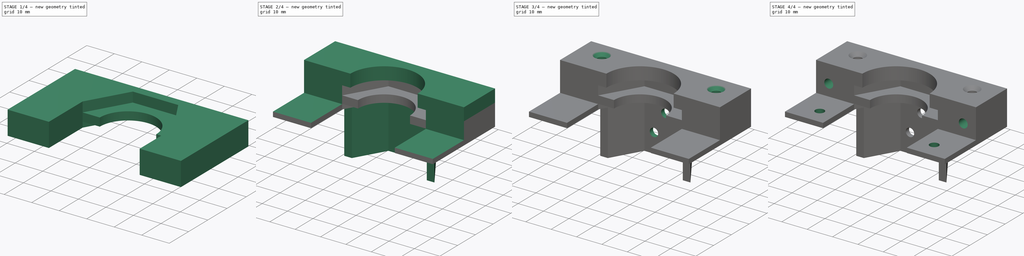
[diagram: build sequence overview — one tinted view per stage of 4, left to right]
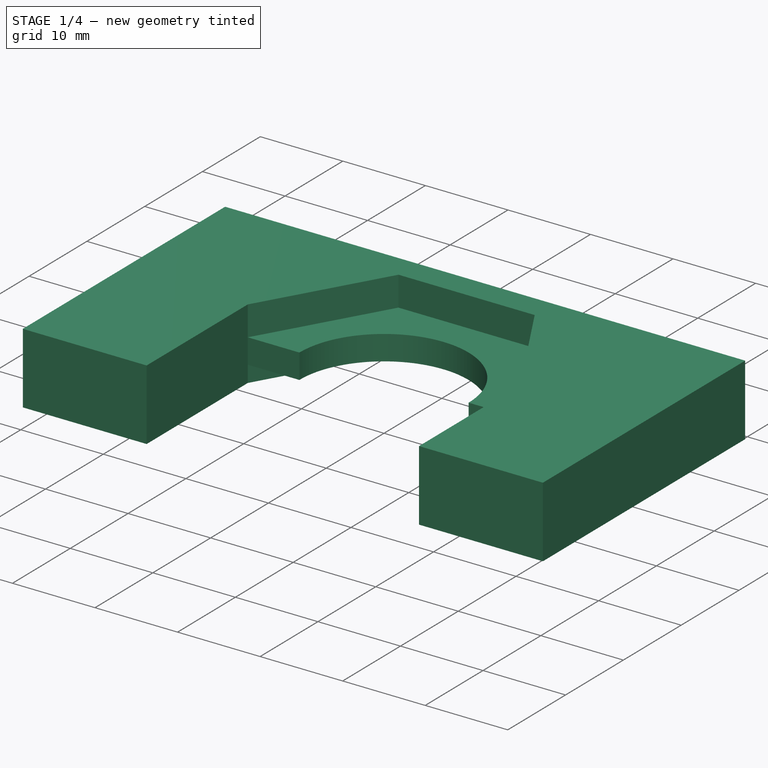
[diagram: stage 1 of 4 — iso view after this stage's code; geometry added in this stage tinted green]
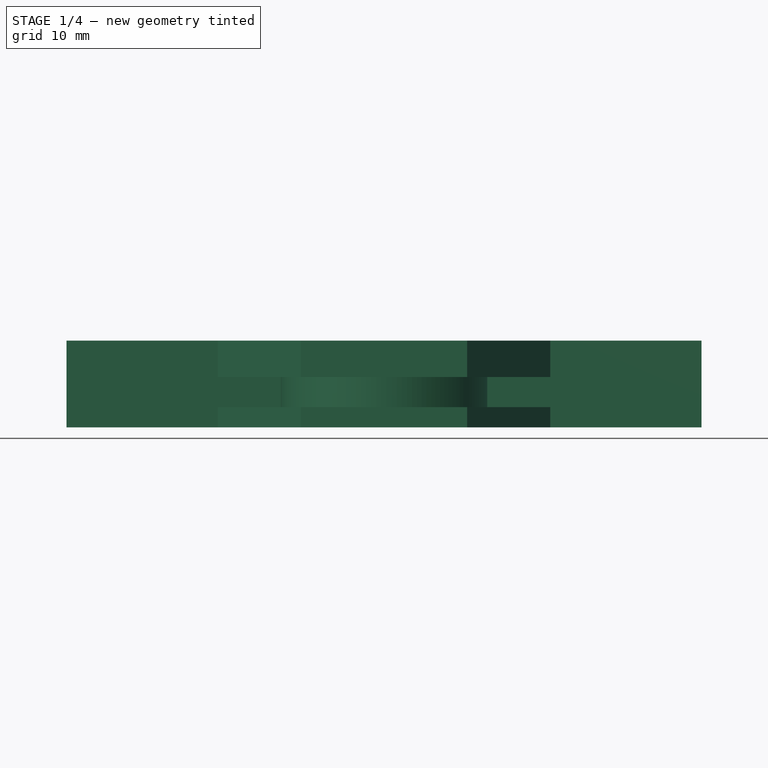
[diagram: stage 1 of 4 — front view after this stage's code; geometry added in this stage tinted green]
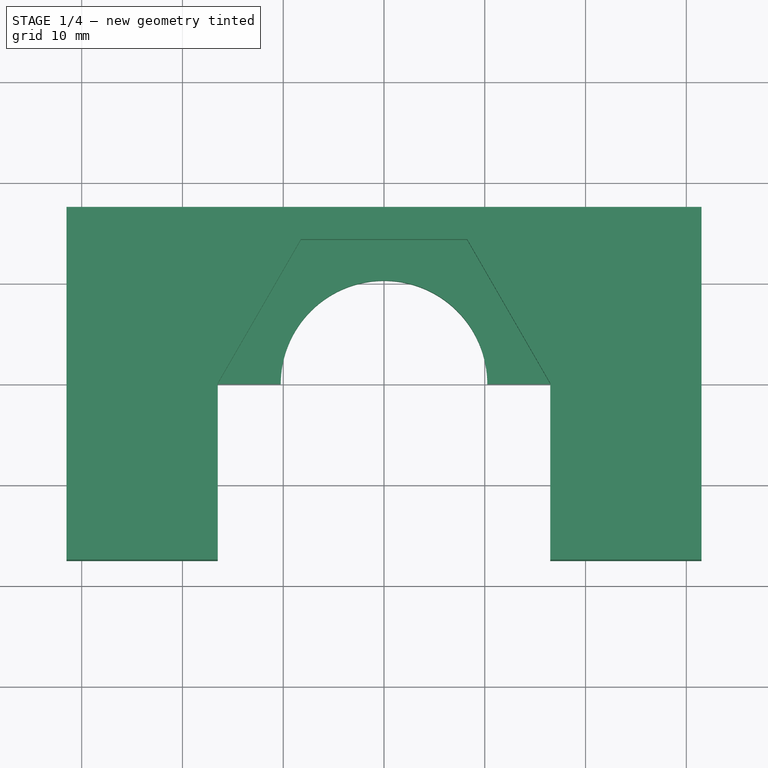
[diagram: stage 1 of 4 — top view after this stage's code; geometry added in this stage tinted green]
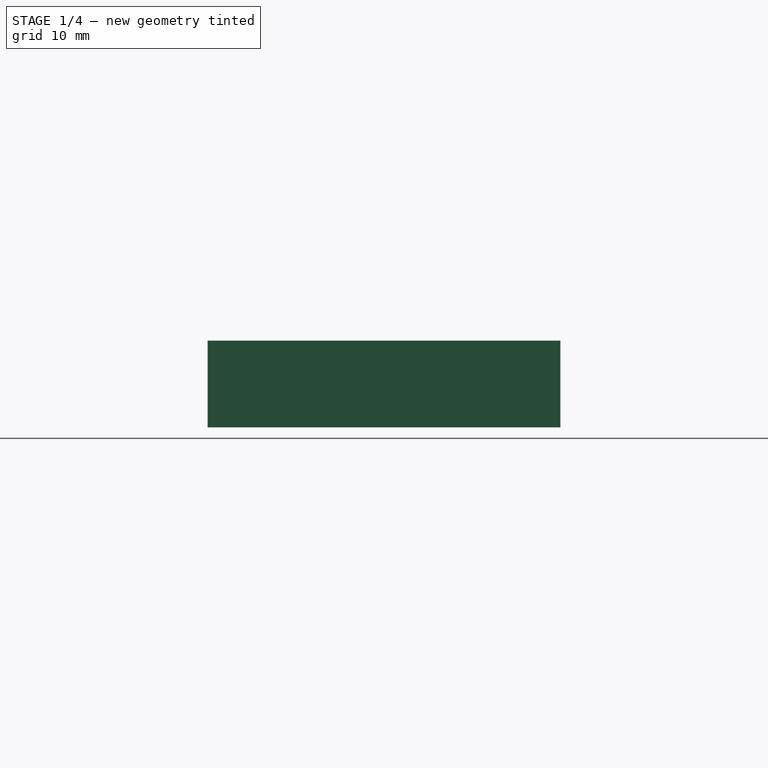
[diagram: stage 1 of 4 — right view after this stage's code; geometry added in this stage tinted green]
FCSTD DOCUMENT  (FreeCAD 0.17R12955 (Git))
Label: THC-01-Holder
License: All rights reserved
LicenseURL: http://en.wikipedia.org/wiki/All_rights_reserved
objects: Sketcher::SketchObject×12, PartDesign::Pad×5, PartDesign::Pocket×5, PartDesign::Hole×2, PartDesign::Body×1
note: 37 computed .brp shape members not serialized (recipe doc carries the construction recipe); baked Part::Feature solids carry a one-line shape summary decoded from their .brp

FEATURE [Sketcher::SketchObject] Sketch
  MapMode = 5
  Support = -> [XY_Plane]
  sketch-geometry (11):
    g0: LineSegment StartX=-31.5 StartY=17.5 StartZ=0 EndX=31.5 EndY=17.5 EndZ=0
    g1: LineSegment StartX=31.5 StartY=17.5 StartZ=0 EndX=31.5 EndY=-17.5 EndZ=0
    g2: LineSegment StartX=31.5 StartY=-17.5 StartZ=0 EndX=16.5 EndY=-17.5 EndZ=0
    g3: LineSegment StartX=-31.5 StartY=-17.5 StartZ=0 EndX=-31.5 EndY=17.5 EndZ=0
    g4: LineSegment StartX=16.5 StartY=-3.01524e-05 StartZ=0 EndX=8.25 EndY=14.2894 EndZ=0
    g5: LineSegment StartX=8.25 StartY=14.2894 StartZ=0 EndX=-8.25 EndY=14.2894 EndZ=0
    g6: LineSegment StartX=-8.25 StartY=14.2894 StartZ=0 EndX=-16.5 EndY=0 EndZ=0
    g7: Circle [constr] CenterX=0 CenterY=0 CenterZ=0 NormalX=0 NormalY=0 NormalZ=1 AngleXU=0 Radius=16.5
    g8: LineSegment StartX=-16.5 StartY=0 StartZ=0 EndX=-16.5 EndY=-17.5 EndZ=0
    g9: LineSegment StartX=16.5 StartY=-3.01524e-05 StartZ=0 EndX=16.5 EndY=-17.5 EndZ=0
    g10: LineSegment StartX=-16.5 StartY=-17.5 StartZ=0 EndX=-31.5 EndY=-17.5 EndZ=0
  constraints (31):
    c: Coincident(g0,g1)
    c: Coincident(g1,g2)
    c: Coincident(g10,g3)
    c: Coincident(g3,g0)
    c: Horizontal(g0)
    c: Horizontal(g2)
    c: Vertical(g1)
    c: Vertical(g3)
    c: DistanceX(g0,g0) = 63
    c: DistanceY(g1,g0) = 35
    c: Symmetric(g1,g10,g-2)
    c: Symmetric(g0,g10,g-1)
    c: Coincident(g4,g5)
    c: Coincident(g5,g6)
    c: PointOnObject(g4,g7)
    c: PointOnObject(g4,g7)
    c: PointOnObject(g5,g7)
    c: PointOnObject(g6,g7)
    c: Radius(g7) = 16.5
    c: Coincident(g7,g-1)
    c: Parallel(g5,g-1)
    c: Coincident(g8,g6)
    c: Vertical(g8)
    c: Vertical(g9)
    c: Tangent(g9,g7)
    c: Coincident(g2,g9)
    c: Coincident(g10,g8)
    c: Tangent(g2,g10)
    c: DistanceX(g5,g4) = 16.5
    c: PointOnObject(g6,g-1)
    c: Coincident(g4,g9)
FEATURE [PartDesign::Pad] Pad
  Length = 2
  Length2 = 100
  Profile = -> Sketch
  Type = 0
FEATURE [Sketcher::SketchObject] Sketch001
  ExternalGeometry = -> [Pad]
  MapMode = 5
  Placement = pos=(0,0,2) rot=(0,0,1;0rad)
  Support = -> [Pad]
  sketch-geometry (10):
    g0: ArcOfCircle CenterX=0 CenterY=0 CenterZ=0 NormalX=0 NormalY=0 NormalZ=1 AngleXU=0 Radius=10.25 StartAngle=6.28318 EndAngle=9.42478
    g1: LineSegment StartX=-31.5 StartY=17.5 StartZ=0 EndX=31.5 EndY=17.5 EndZ=0
    g2: LineSegment StartX=31.5 StartY=17.5 StartZ=0 EndX=31.5 EndY=-17.5 EndZ=0
    g3: LineSegment StartX=31.5 StartY=-17.5 StartZ=0 EndX=16.5 EndY=-17.5 EndZ=0
    g4: LineSegment StartX=-31.5 StartY=-17.5 StartZ=0 EndX=-31.5 EndY=17.5 EndZ=0
    g5: LineSegment StartX=-16.5 StartY=0 StartZ=0 EndX=-10.25 EndY=0 EndZ=0
    g6: LineSegment StartX=10.25 StartY=-3.01524e-05 StartZ=0 EndX=16.5 EndY=-3.01524e-05 EndZ=0
    g7: LineSegment StartX=-16.5 StartY=-17.5 StartZ=0 EndX=-16.5 EndY=0 EndZ=0
    g8: LineSegment StartX=16.5 StartY=-17.5 StartZ=0 EndX=16.5 EndY=-3.01524e-05 EndZ=0
    g9: LineSegment StartX=-16.5 StartY=-17.5 StartZ=0 EndX=-31.5 EndY=-17.5 EndZ=0
  constraints (26):
    c: Radius(g0) = 10.25
    c: Coincident(g0,g-1)
    c: Coincident(g1,g2)
    c: Coincident(g2,g3)
    c: Coincident(g9,g4)
    c: Coincident(g4,g1)
    c: Horizontal(g1)
    c: Horizontal(g3)
    c: Vertical(g2)
    c: Vertical(g4)
    c: Coincident(g2,g-4)
    c: Coincident(g1,g-3)
    c: Coincident(g5,g-6)
    c: Horizontal(g5)
    c: Coincident(g6,g-5)
    c: Horizontal(g6)
    c: Coincident(g7,g5)
    c: Vertical(g7)
    c: Coincident(g8,g6)
    c: Vertical(g8)
    c: PointOnObject(g3,g8)
    c: PointOnObject(g9,g7)
    c: Tangent(g3,g9)
    c: Coincident(g0,g6)
    c: Coincident(g0,g5)
    c: Coincident(g7,g9)
FEATURE [PartDesign::Pad] Pad001
  BaseFeature = -> Pad
  Length = 3
  Length2 = 100
  Profile = -> Sketch001
  Type = 0
FEATURE [Sketcher::SketchObject] Sketch002
  ExternalGeometry = -> [Pad001]
  MapMode = 5
  Placement = pos=(0,0,5) rot=(0,0,1;0rad)
  Support = -> [Pad001]
  sketch-geometry (11):
    g0: LineSegment StartX=16.5 StartY=0 StartZ=0 EndX=8.25 EndY=14.2894 EndZ=0
    g1: LineSegment StartX=8.25 StartY=14.2894 StartZ=0 EndX=-8.25 EndY=14.2894 EndZ=0
    g2: LineSegment StartX=-8.25 StartY=14.2894 StartZ=0 EndX=-16.5 EndY=0 EndZ=0
    g3: Circle [constr] CenterX=0 CenterY=0 CenterZ=0 NormalX=0 NormalY=0 NormalZ=1 AngleXU=0 Radius=16.5
    g4: LineSegment StartX=-31.5 StartY=17.5 StartZ=0 EndX=31.5 EndY=17.5 EndZ=0
    g5: LineSegment StartX=31.5 StartY=17.5 StartZ=0 EndX=31.5 EndY=-17.5 EndZ=0
    g6: LineSegment StartX=31.5 StartY=-17.5 StartZ=0 EndX=16.5 EndY=-17.5 EndZ=0
    g7: LineSegment StartX=-31.5 StartY=-17.5 StartZ=0 EndX=-31.5 EndY=17.5 EndZ=0
    g8: LineSegment StartX=-16.5 StartY=0 StartZ=0 EndX=-16.5 EndY=-17.5 EndZ=0
    g9: LineSegment StartX=16.5 StartY=0 StartZ=0 EndX=16.5 EndY=-17.5 EndZ=0
    g10: LineSegment StartX=-16.5 StartY=-17.5 StartZ=0 EndX=-31.5 EndY=-17.5 EndZ=0
  constraints (29):
    c: Coincident(g0,g1)
    c: Coincident(g1,g2)
    c: PointOnObject(g0,g3)
    c: PointOnObject(g0,g3)
    c: PointOnObject(g1,g3)
    c: PointOnObject(g2,g3)
    c: Coincident(g3,g-1)
    c: Parallel(g1,g-1)
    c: Coincident(g4,g5)
    c: Coincident(g5,g6)
    c: Coincident(g10,g7)
    c: Coincident(g7,g4)
    c: Horizontal(g4)
    c: Horizontal(g6)
    c: Vertical(g5)
    c: Vertical(g7)
    c: Coincident(g4,g-3)
    c: Coincident(g5,g-6)
    c: PointOnObject(g8,g-1)
    c: Coincident(g8,g-4)
    c: PointOnObject(g9,g-1)
    c: Coincident(g9,g-5)
    c: Coincident(g8,g2)
    c: PointOnObject(g6,g9)
    c: PointOnObject(g10,g8)
    c: Tangent(g6,g10)
    c: Coincident(g9,g0)
    c: Radius(g3) = 16.5
    c: DistanceX(g1,g0) = 16.5
FEATURE [PartDesign::Pad] Pad002
  BaseFeature = -> Pad001
  Length = 3.6
  Length2 = 100
  Profile = -> Sketch002
  Type = 0
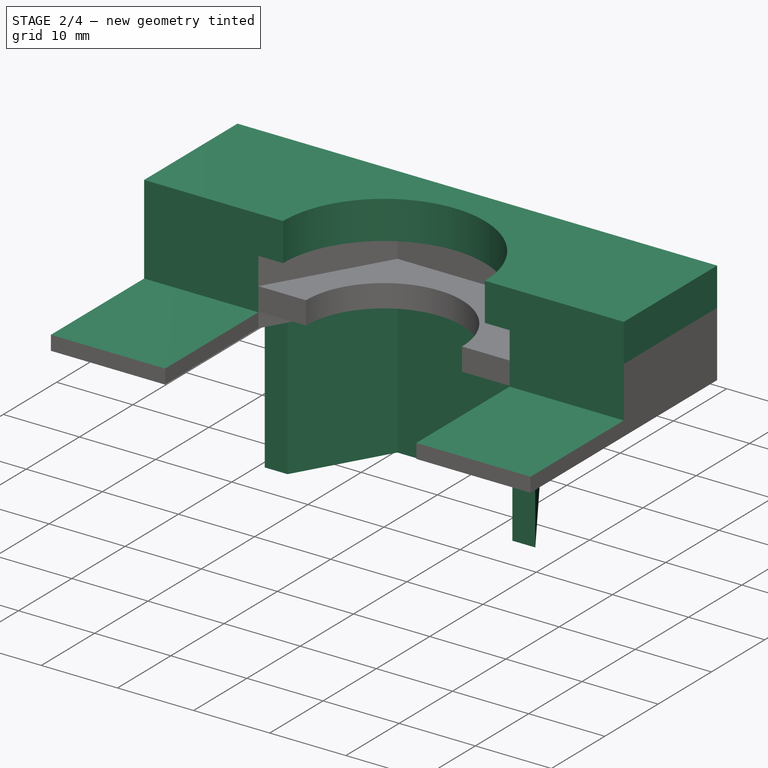
[diagram: stage 2 of 4 — iso view after this stage's code; geometry added in this stage tinted green]
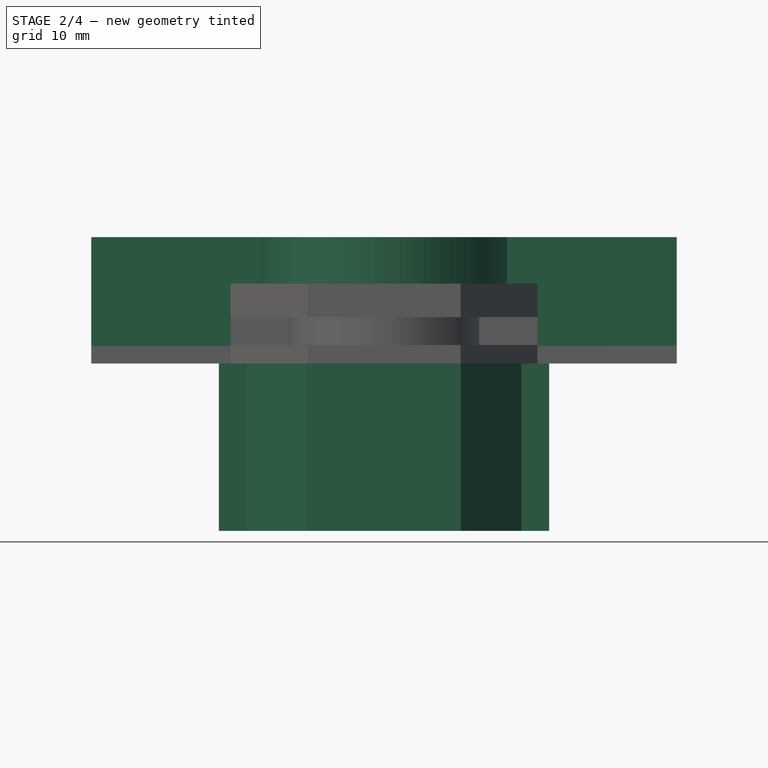
[diagram: stage 2 of 4 — front view after this stage's code; geometry added in this stage tinted green]
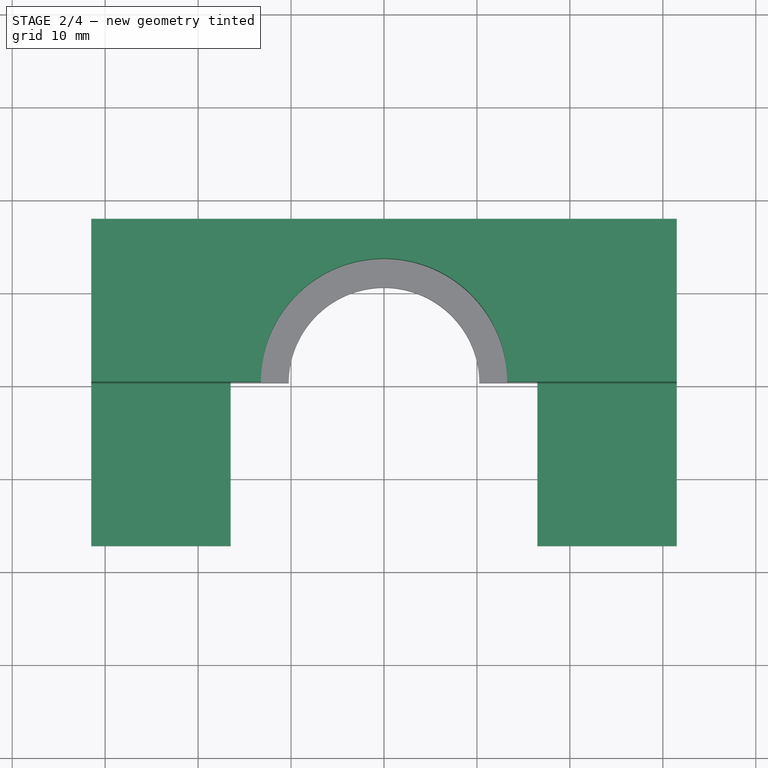
[diagram: stage 2 of 4 — top view after this stage's code; geometry added in this stage tinted green]
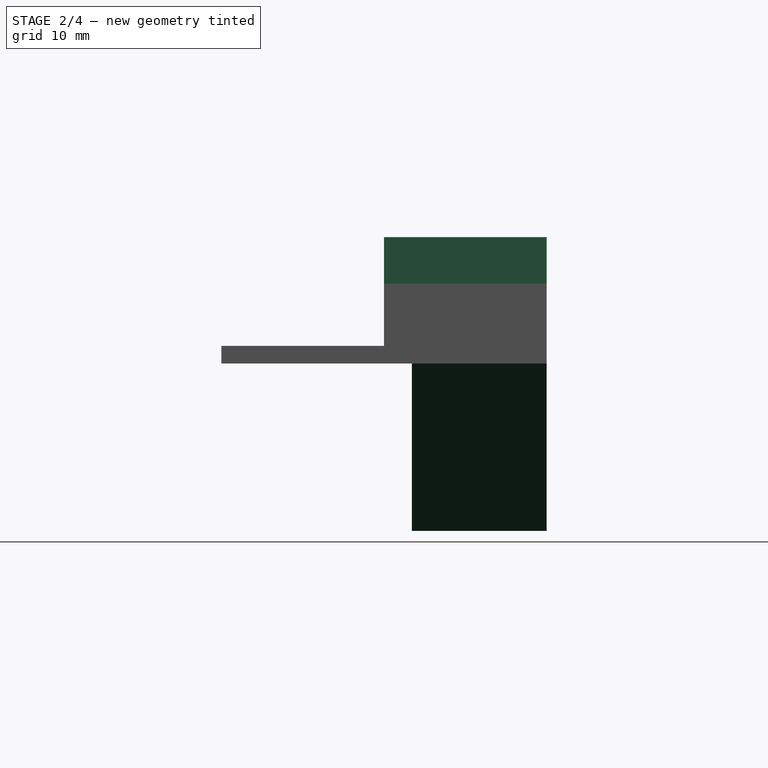
[diagram: stage 2 of 4 — right view after this stage's code; geometry added in this stage tinted green]
FEATURE [Sketcher::SketchObject] Sketch003
  ExternalGeometry = -> [Pad002]
  MapMode = 5
  Placement = pos=(0,0,8.6) rot=(0,0,1;0rad)
  Support = -> [Pad002]
  sketch-geometry (10):
    g0: LineSegment StartX=-31.5 StartY=17.5 StartZ=0 EndX=31.5 EndY=17.5 EndZ=0
    g1: LineSegment StartX=31.5 StartY=17.5 StartZ=0 EndX=31.5 EndY=-17.5 EndZ=0
    g2: LineSegment StartX=31.5 StartY=-17.5 StartZ=0 EndX=16.5 EndY=-17.5 EndZ=0
    g3: LineSegment StartX=-31.5 StartY=-17.5 StartZ=0 EndX=-31.5 EndY=17.5 EndZ=0
    g4: ArcOfCircle CenterX=0 CenterY=0 CenterZ=0 NormalX=0 NormalY=0 NormalZ=1 AngleXU=0 Radius=13.25 StartAngle=0 EndAngle=3.14159
    g5: LineSegment StartX=-16.5 StartY=-17.5 StartZ=0 EndX=-16.5 EndY=-3e-12 EndZ=0
    g6: LineSegment StartX=-16.5 StartY=-3e-12 StartZ=0 EndX=-13.25 EndY=-3e-12 EndZ=0
    g7: LineSegment StartX=16.5 StartY=-17.5 StartZ=0 EndX=16.5 EndY=0 EndZ=0
    g8: LineSegment StartX=16.5 StartY=0 StartZ=0 EndX=13.25 EndY=0 EndZ=0
    g9: LineSegment StartX=-16.5 StartY=-17.5 StartZ=0 EndX=-31.5 EndY=-17.5 EndZ=0
  constraints (25):
    c: Coincident(g0,g1)
    c: Coincident(g1,g2)
    c: Coincident(g9,g3)
    c: Coincident(g3,g0)
    c: Horizontal(g0)
    c: Horizontal(g2)
    c: Vertical(g1)
    c: Vertical(g3)
    c: Coincident(g0,g-6)
    c: Coincident(g1,g-8)
    c: Coincident(g4,g-1)
    c: Radius(g4) = 13.25
    c: Coincident(g-7,g5)
    c: Coincident(g5,g-7)
    c: Coincident(g5,g6)
    c: Horizontal(g6)
    c: Coincident(g-4,g7)
    c: Coincident(g7,g-4)
    c: Coincident(g7,g8)
    c: Horizontal(g8)
    c: PointOnObject(g2,g7)
    c: PointOnObject(g9,g5)
    c: Tangent(g2,g9)
    c: Coincident(g4,g8)
    c: Coincident(g4,g6)
FEATURE [PartDesign::Pad] Pad003
  BaseFeature = -> Pad002
  Length = 5
  Length2 = 100
  Profile = -> Sketch003
  Type = 0
FEATURE [Sketcher::SketchObject] Sketch004
  ExternalGeometry = -> [Pad003]
  MapMode = 5
  Placement = pos=(0,0,13.6) rot=(0,0,1;0rad)
  Support = -> [Pad003]
  sketch-geometry (4):
    g0: LineSegment StartX=-31.5 StartY=0 StartZ=0 EndX=31.5 EndY=0 EndZ=0
    g1: LineSegment StartX=31.5 StartY=0 StartZ=0 EndX=31.5 EndY=-17.5 EndZ=0
    g2: LineSegment StartX=31.5 StartY=-17.5 StartZ=0 EndX=-31.5 EndY=-17.5 EndZ=0
    g3: LineSegment StartX=-31.5 StartY=-17.5 StartZ=0 EndX=-31.5 EndY=0 EndZ=0
  constraints (9):
    c: Coincident(g0,g1)
    c: Coincident(g1,g2)
    c: Coincident(g2,g3)
    c: Coincident(g3,g0)
    c: Horizontal(g0)
    c: Horizontal(g2)
    c: Vertical(g1)
    c: Vertical(g3)
    c: PointOnObject(g0,g-1)
FEATURE [PartDesign::Pocket] Pocket
  BaseFeature = -> Pad003
  Length = 11.7
  Profile = -> Sketch004
  Type = 0
FEATURE [Sketcher::SketchObject] Sketch008
  ExternalGeometry = -> [Pocket]
  MapMode = 5
  Placement = pos=(0,0,0) rot=(1,0,0;3.14159rad)
  Support = -> [Pocket]
  sketch-geometry (8):
    g0: LineSegment StartX=-8.25 StartY=-14.2894 StartZ=0 EndX=8.25 EndY=-14.2894 EndZ=0
    g1: LineSegment StartX=8.25 StartY=-17.5 StartZ=0 EndX=-8.25 EndY=-17.5 EndZ=0
    g2: LineSegment StartX=-14.7679 StartY=-3 StartZ=0 EndX=-17.7679 EndY=-3 EndZ=0
    g3: LineSegment StartX=-17.7679 StartY=-3 StartZ=0 EndX=-8.25 EndY=-17.5 EndZ=0
    g4: LineSegment StartX=14.768 StartY=-2.99997 StartZ=0 EndX=17.768 EndY=-3 EndZ=0
    g5: LineSegment StartX=17.768 StartY=-3 StartZ=0 EndX=8.25 EndY=-17.5 EndZ=0
    g6: LineSegment StartX=-14.7679 StartY=-3 StartZ=0 EndX=-8.25 EndY=-14.2894 EndZ=0
    g7: LineSegment StartX=8.25 StartY=-14.2894 StartZ=0 EndX=14.768 EndY=-2.99997 EndZ=0
  constraints (22):
    c: Coincident(g2,g3)
    c: Coincident(g1,g3)
    c: Coincident(g0,g6)
    c: Coincident(g0,g7)
    c: Coincident(g1,g5)
    c: Coincident(g4,g5)
    c: PointOnObject(g1,g-3)
    c: DistanceX(g1,g1) = 16.5
    c: DistanceX(g2,g2) = 3
    c: DistanceX(g4,g4) = 3
    c: DistanceY(g-3,g2) = 14.5
    c: DistanceY(g-3,g4) = 14.5
    c: Coincident(g0,g-6)
    c: Coincident(g-7,g0)
    c: PointOnObject(g1,g-3)
    c: Symmetric(g1,g1,g-2)
    c: Coincident(g6,g2)
    c: DistanceY(g2,g-6) = 3
    c: Coincident(g7,g4)
    c: DistanceY(g4,g-7) = 3
    c: PointOnObject(g4,g-7)
    c: PointOnObject(g2,g-6)
FEATURE [PartDesign::Pad] Pad004
  BaseFeature = -> Pocket
  Length = 18
  Length2 = 100
  Profile = -> Sketch008
  Type = 0
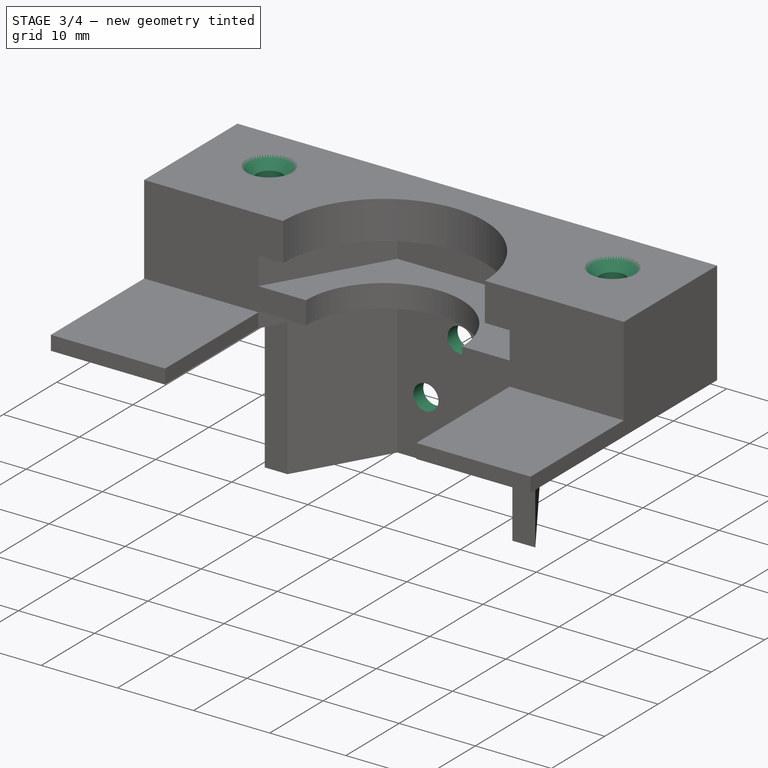
[diagram: stage 3 of 4 — iso view after this stage's code; geometry added in this stage tinted green]
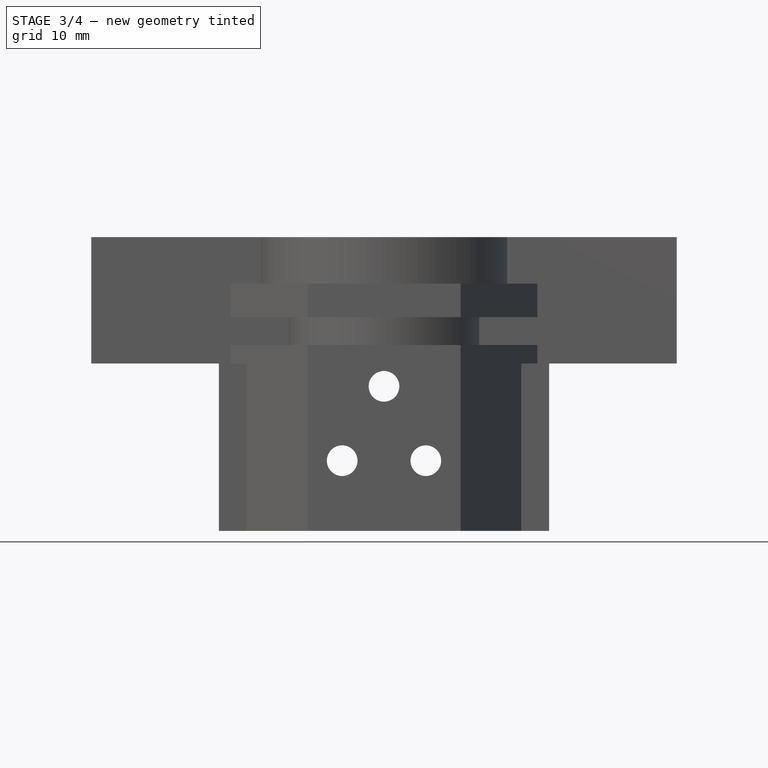
[diagram: stage 3 of 4 — front view after this stage's code; geometry added in this stage tinted green]
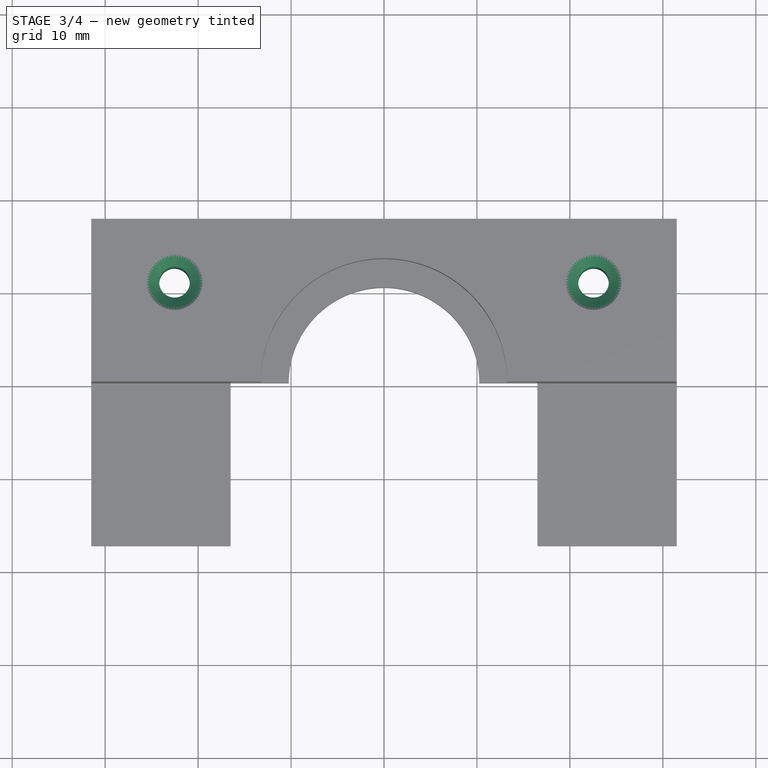
[diagram: stage 3 of 4 — top view after this stage's code; geometry added in this stage tinted green]
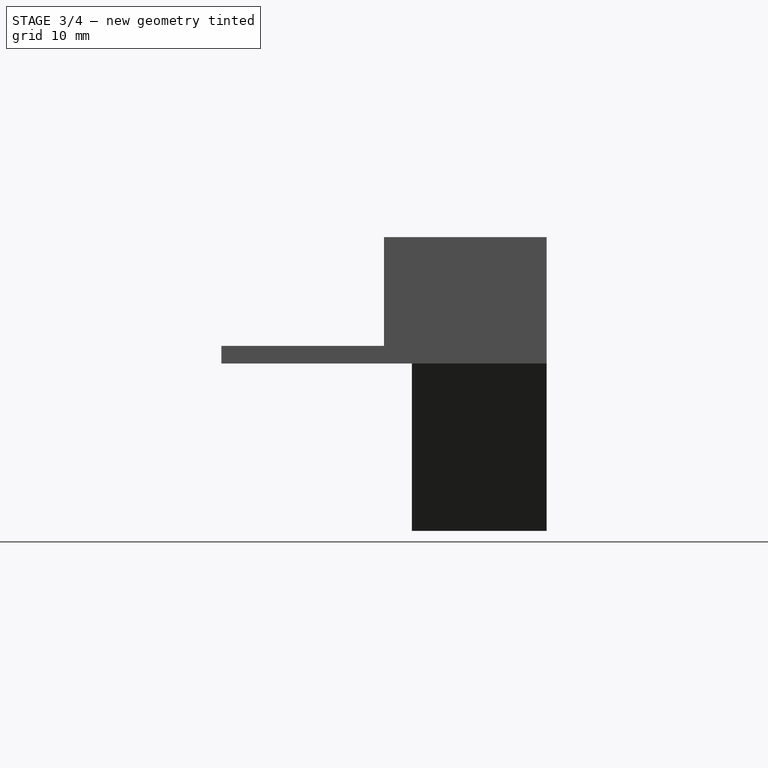
[diagram: stage 3 of 4 — right view after this stage's code; geometry added in this stage tinted green]
FEATURE [Sketcher::SketchObject] Sketch009
  MapMode = 5
  Placement = pos=(0,17.5,0) rot=(0,0.707107,0.707107;3.14159rad)
  Support = -> [Pad004]
  sketch-geometry (3):
    g0: Circle CenterX=0 CenterY=-2.45 CenterZ=0 NormalX=0 NormalY=0 NormalZ=1 AngleXU=0 Radius=2.1
    g1: Circle CenterX=-4.5 CenterY=-10.45 CenterZ=0 NormalX=0 NormalY=0 NormalZ=1 AngleXU=0 Radius=2.1
    g2: Circle CenterX=4.5 CenterY=-10.45 CenterZ=0 NormalX=0 NormalY=0 NormalZ=1 AngleXU=0 Radius=2.1
  constraints (8):
    c: Radius(g0) = 2.1
    c: PointOnObject(g0,g-2)
    c: Radius(g1) = 2.1
    c: Equal(g1,g2)
    c: DistanceX(g1,g2) = 9
    c: DistanceX(g-1,g2) = 4.5
    c: DistanceY(g2,g0) = 8
    c: DistanceY(g1,g0) = 8
FEATURE [PartDesign::Hole] Hole
  BaseFeature = -> Pad004
  Depth = 25
  DepthType = 0
  Diameter = 3.3
  DrillPoint = 1
  DrillPointAngle = 118
  HoleCutCountersinkAngle = 90
  HoleCutDepth = 0
  HoleCutDiameter = 6
  HoleCutType = 2
  ModelActualThread = false
  Profile = -> Sketch009
  Tapered = false
  TaperedAngle = 90
  ThreadAngle = 0
  ThreadClass = 0
  ThreadCutOffInner = 0
  ThreadCutOffOuter = 0
  ThreadDirection = 0
  ThreadFit = 0
  ThreadPitch = 0
  ThreadSize = 3
  ThreadType = 1
  Threaded = false
FEATURE [Sketcher::SketchObject] Sketch010
  ExternalGeometry = -> [Hole]
  MapMode = 5
  Placement = pos=(0,0,1.9) rot=(0,0,1;0rad)
  sketch-geometry (2):
    g0: Circle CenterX=-22.54 CenterY=24.3 CenterZ=0 NormalX=0 NormalY=0 NormalZ=1 AngleXU=0 Radius=1.75
    g1: Circle CenterX=7.79 CenterY=24.3 CenterZ=0 NormalX=0 NormalY=0 NormalZ=1 AngleXU=0 Radius=1.75
  constraints (6):
    c: DistanceY(g-3,g0) = 6.8
    c: DistanceX(g-5,g0) = 8.96
    c: Radius(g0) = 1.75
    c: Equal(g0,g1)
    c: DistanceX(g1,g-7) = 8.96
    c: DistanceY(g-7,g1) = 6.8
FEATURE [PartDesign::Pocket] Pocket001
  BaseFeature = -> Hole
  Length = 5
  Profile = -> Sketch010
  Type = 0
FEATURE [Sketcher::SketchObject] Sketch011
  ExternalGeometry = -> [Pocket001]
  MapMode = 5
  Placement = pos=(0,0,13.6) rot=(0,0,1;0rad)
  Support = -> [Pocket001]
  sketch-geometry (2):
    g0: Circle CenterX=-22.54 CenterY=10.7 CenterZ=0 NormalX=0 NormalY=0 NormalZ=1 AngleXU=0 Radius=1.75
    g1: Circle CenterX=22.54 CenterY=10.7 CenterZ=0 NormalX=0 NormalY=0 NormalZ=1 AngleXU=0 Radius=1.75
  constraints (6):
    c: Radius(g1) = 1.75
    c: Equal(g1,g0)
    c: DistanceX(g-3,g0) = 8.96
    c: DistanceY(g1,g-4) = 6.8
    c: DistanceX(g1,g-4) = 8.96
    c: DistanceY(g0,g-3) = 6.8
FEATURE [PartDesign::Hole] Hole001
  BaseFeature = -> Pocket001
  Depth = 25
  DepthType = 0
  Diameter = 3.3
  DrillPoint = 1
  DrillPointAngle = 118
  HoleCutCountersinkAngle = 90
  HoleCutDepth = 0
  HoleCutDiameter = 6
  HoleCutType = 2
  ModelActualThread = false
  Profile = -> Sketch011
  Tapered = false
  TaperedAngle = 90
  ThreadAngle = 0
  ThreadClass = 0
  ThreadCutOffInner = 0
  ThreadCutOffOuter = 0
  ThreadDirection = 0
  ThreadFit = 0
  ThreadPitch = 0
  ThreadSize = 3
  ThreadType = 1
  Threaded = false
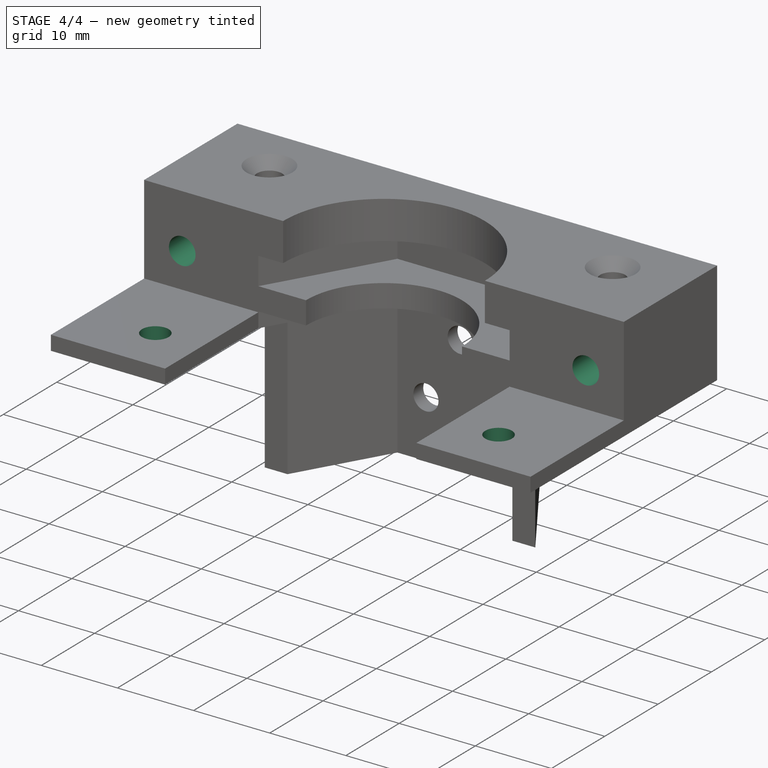
[diagram: stage 4 of 4 — iso view after this stage's code; geometry added in this stage tinted green]
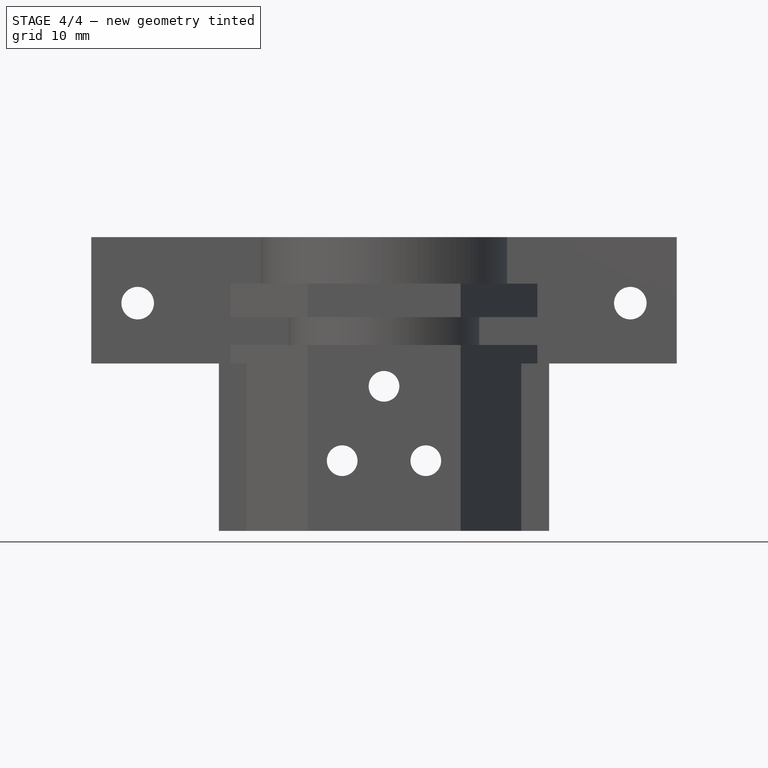
[diagram: stage 4 of 4 — front view after this stage's code; geometry added in this stage tinted green]
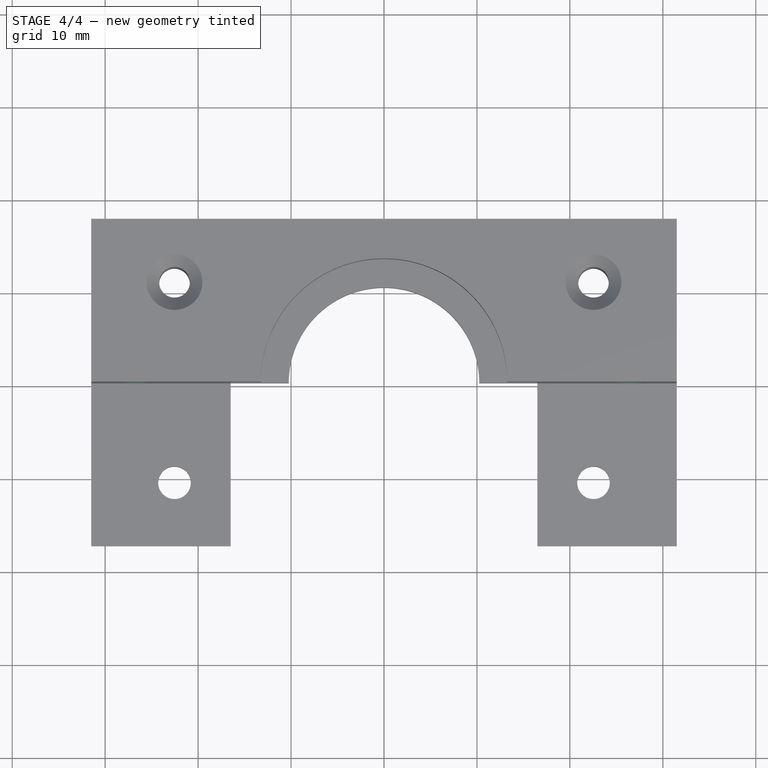
[diagram: stage 4 of 4 — top view after this stage's code; geometry added in this stage tinted green]
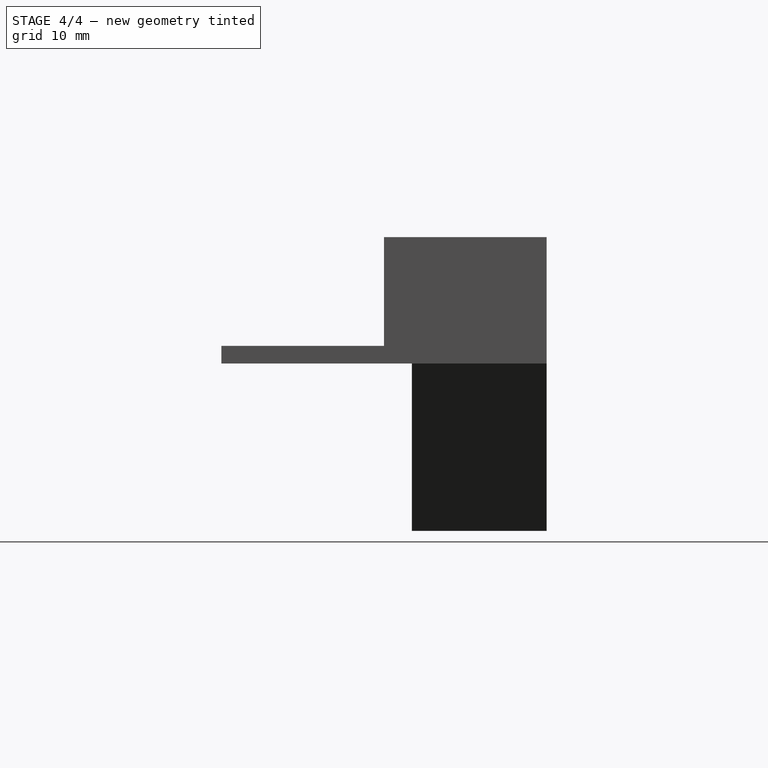
[diagram: stage 4 of 4 — right view after this stage's code; geometry added in this stage tinted green]
FEATURE [Sketcher::SketchObject] Sketch012
  ExternalGeometry = -> [Hole001]
  MapMode = 5
  Placement = pos=(0,0,1.9) rot=(0,0,1;0rad)
  Support = -> [Hole001]
  sketch-geometry (2):
    g0: Circle CenterX=-22.54 CenterY=-10.7 CenterZ=0 NormalX=0 NormalY=0 NormalZ=1 AngleXU=0 Radius=1.75
    g1: Circle CenterX=22.54 CenterY=-10.7 CenterZ=0 NormalX=0 NormalY=0 NormalZ=1 AngleXU=0 Radius=1.75
  constraints (6):
    c: Radius(g1) = 1.75
    c: Equal(g1,g0)
    c: DistanceX(g-3,g0) = 8.96
    c: DistanceY(g-3,g0) = 6.8
    c: DistanceX(g1,g-4) = 8.96
    c: DistanceY(g-4,g1) = 6.8
FEATURE [PartDesign::Pocket] Pocket002
  BaseFeature = -> Hole001
  Length = 5
  Profile = -> Sketch012
  Type = 0
FEATURE [Sketcher::SketchObject] Sketch013
  ExternalGeometry = -> [Pocket002]
  MapMode = 5
  Placement = pos=(0,17.5,0) rot=(0,0.707107,0.707107;3.14159rad)
  Support = -> [Pocket002]
  sketch-geometry (2):
    g0: Circle CenterX=-26.5 CenterY=6.5 CenterZ=0 NormalX=0 NormalY=0 NormalZ=1 AngleXU=0 Radius=1.75
    g1: Circle CenterX=26.5 CenterY=6.5 CenterZ=0 NormalX=0 NormalY=0 NormalZ=1 AngleXU=0 Radius=1.75
  constraints (6):
    c: Radius(g1) = 1.75
    c: Equal(g1,g0)
    c: DistanceX(g0,g-1) = 26.5
    c: DistanceX(g-1,g1) = 26.5
    c: DistanceY(g-3,g0) = 6.5
    c: DistanceY(g-4,g1) = 6.5
FEATURE [PartDesign::Pocket] Pocket003
  BaseFeature = -> Pocket002
  Length = 5
  Profile = -> Sketch013
  Type = 1
FEATURE [Sketcher::SketchObject] Sketch014
  ExternalGeometry = -> [Pocket003]
  MapMode = 5
  Placement = pos=(0,17.5,0) rot=(0,0.707107,0.707107;3.14159rad)
  Support = -> [Pocket003]
  sketch-geometry (14):
    g0: LineSegment StartX=-26.5 StartY=3.3 StartZ=0 EndX=-23.7287 EndY=4.9 EndZ=0
    g1: LineSegment StartX=-23.7287 StartY=4.9 StartZ=0 EndX=-23.7287 EndY=8.1 EndZ=0
    g2: LineSegment StartX=-23.7287 StartY=8.1 StartZ=0 EndX=-26.5 EndY=9.7 EndZ=0
    g3: LineSegment StartX=-26.5 StartY=9.7 StartZ=0 EndX=-29.2713 EndY=8.1 EndZ=0
    g4: LineSegment StartX=-29.2713 StartY=8.1 StartZ=0 EndX=-29.2713 EndY=4.9 EndZ=0
    g5: LineSegment StartX=-29.2713 StartY=4.9 StartZ=0 EndX=-26.5 EndY=3.3 EndZ=0
    g6: Circle [constr] CenterX=-26.5 CenterY=6.5 CenterZ=0 NormalX=0 NormalY=0 NormalZ=1 AngleXU=0 Radius=3.2
    g7: LineSegment StartX=29.2713 StartY=4.9 StartZ=0 EndX=29.2713 EndY=8.1 EndZ=0
    g8: LineSegment StartX=29.2713 StartY=8.1 StartZ=0 EndX=26.5 EndY=9.7 EndZ=0
    g9: LineSegment StartX=26.5 StartY=9.7 StartZ=0 EndX=23.7287 EndY=8.1 EndZ=0
    g10: LineSegment StartX=23.7287 StartY=8.1 StartZ=0 EndX=23.7287 EndY=4.9 EndZ=0
    g11: LineSegment StartX=23.7287 StartY=4.9 StartZ=0 EndX=26.5 EndY=3.3 EndZ=0
    g12: LineSegment StartX=26.5 StartY=3.3 StartZ=0 EndX=29.2713 EndY=4.9 EndZ=0
    g13: Circle [constr] CenterX=26.5 CenterY=6.5 CenterZ=0 NormalX=0 NormalY=0 NormalZ=1 AngleXU=0 Radius=3.2
  constraints (32):
    c: Coincident(g0,g1)
    c: Coincident(g1,g2)
    c: Coincident(g2,g3)
    c: Coincident(g3,g4)
    c: Coincident(g4,g5)
    c: Coincident(g5,g0)
    c: Equal(g0, g1-g5) x5
    c: PointOnObject(g0,g6)
    c: PointOnObject(g1,g6)
    c: PointOnObject(g2,g6)
    c: PointOnObject(g3,g6)
    c: PointOnObject(g4,g6)
    c: PointOnObject(g5,g6)
    c: Coincident(g7,g8)
    c: Coincident(g8,g9)
    c: Coincident(g9,g10)
    c: Coincident(g10,g11)
    c: Coincident(g11,g12)
    c: Coincident(g12,g7)
    c: Equal(g7, g8-g12) x5
    c: PointOnObject(g7,g13)
    c: PointOnObject(g8,g13)
    c: PointOnObject(g9,g13)
    c: PointOnObject(g10,g13)
    c: PointOnObject(g11,g13)
    c: PointOnObject(g12,g13)
    c: Radius(g6) = 3.2
    c: Equal(g6,g13)
    c: Coincident(g6,g-3)
    c: Coincident(g13,g-4)
    c: Parallel(g1,g-2)
    c: Parallel(g-2,g10)
FEATURE [PartDesign::Pocket] Pocket004
  BaseFeature = -> Pocket003
  Length = 2.5
  Profile = -> Sketch014
  Type = 0
FEATURE [PartDesign::Body] Body
  Group = -> [Sketch,Pad,Sketch001,Pad001,Sketch002,Pad002,Sketch003,Pad003,Sketch004,Pocket,Sketch008,Sketch009,Pad004,Hole,Sketch010,Pocket001,Sketch011,Hole001,Sketch012,Pocket002,Sketch013,Pocket003,Sketch014,Pocket004]
  Origin = -> Origin
  Tip = -> Pocket004
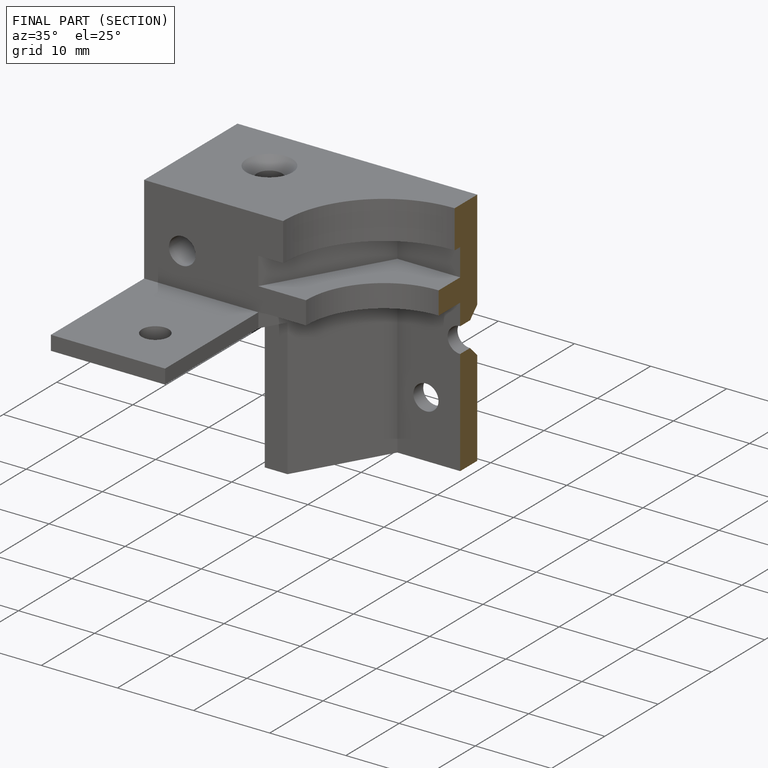
[diagram: finished part — half-section view (interior)]
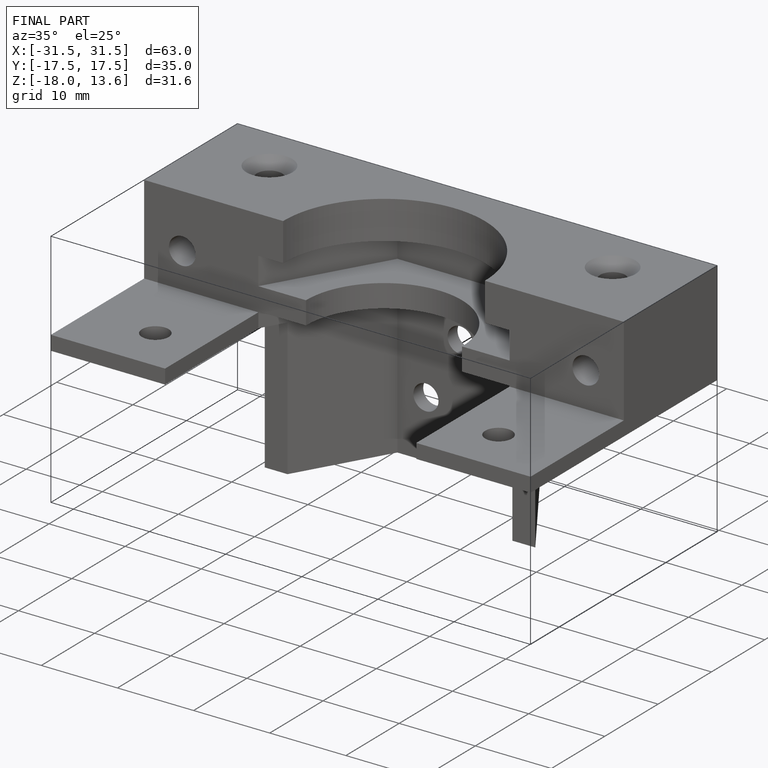
[diagram: finished part — iso view with bounding-box wireframe]
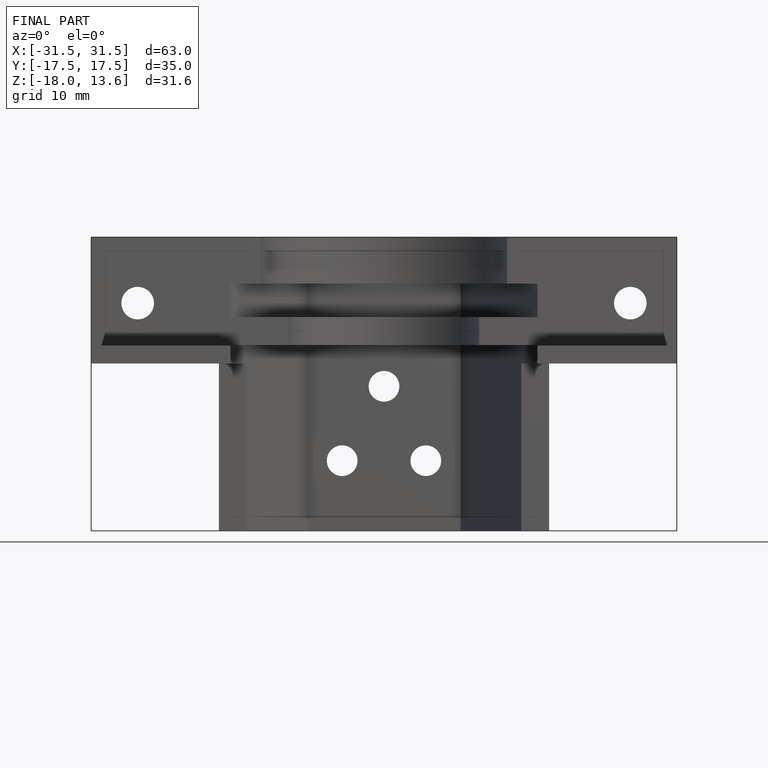
[diagram: finished part — front view with bounding-box wireframe]
